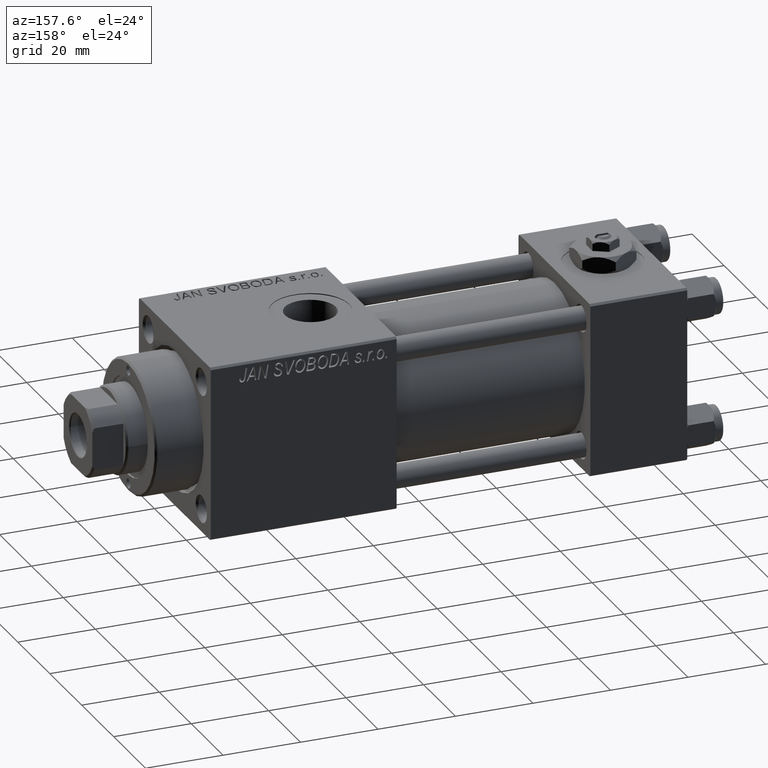
[diagram: clean part render]
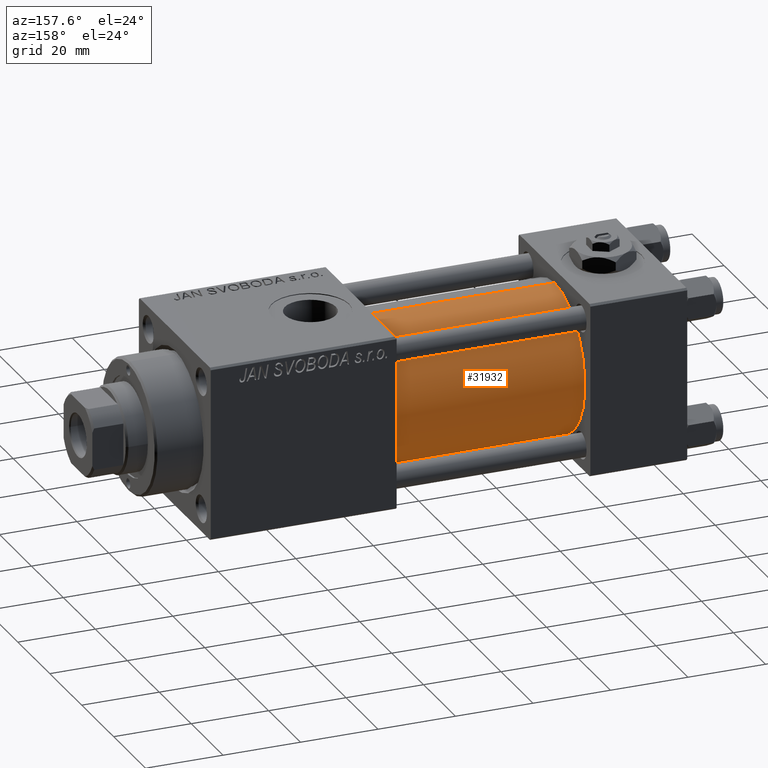
[diagram: same view with one face highlighted and labeled with its STEP entity id]
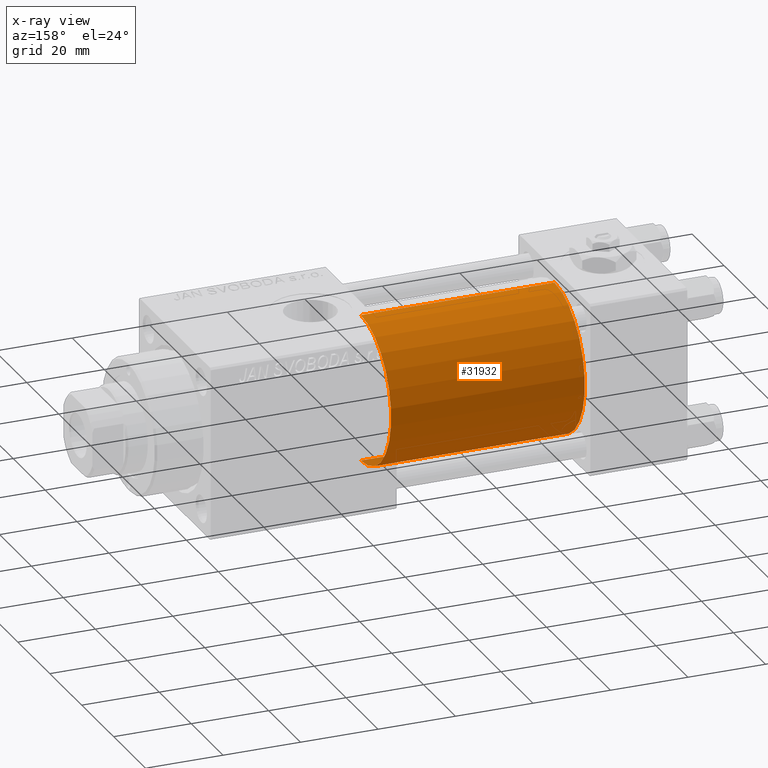
[diagram: x-ray of the same camera — body ghosted, the highlighted face saturated]
A machine part, auxiliary view. The second image highlights one B-rep face of the part: STEP entity #31932.
The next image is the same camera in x-ray: the body ghosted, the highlighted face saturated — about 0% of this face is hidden behind the body in this view.
In plain terms, the highlighted cylindrical surface (partial cylindrical patch) has radius 19 mm, axis along (-1, -0, -0).
Its self-contained STEP definition (entity closure, byte-faithful):
#1774 = ORIENTED_EDGE ( 'NONE', *, *, #43301, .T. ) ;
#3951 = DIRECTION ( 'NONE',  ( -1.000000000000000000, -0.000000000000000000, -0.000000000000000000 ) ) ;
#7934 = LINE ( 'NONE', #24064, #48114 ) ;
#8921 = CARTESIAN_POINT ( 'NONE',  ( 75.00000000000001421, -2.602085213965210642E-15, 0.000000000000000000 ) ) ;
#11958 = EDGE_CURVE ( 'NONE', #42568, #50211, #31040, .T. ) ;
#12145 = AXIS2_PLACEMENT_3D ( 'NONE', #15971, #47419, #51118 ) ;
#15971 = CARTESIAN_POINT ( 'NONE',  ( 25.00000000000000000, -2.602085213965210642E-15, 0.000000000000000000 ) ) ;
#16254 = ORIENTED_EDGE ( 'NONE', *, *, #25035, .F. ) ;
#16768 = VECTOR ( 'NONE', #26800, 1000.000000000000000 ) ;
#17113 = FACE_OUTER_BOUND ( 'NONE', #42223, .T. ) ;
#17901 = DIRECTION ( 'NONE',  ( -1.000000000000000000, -0.000000000000000000, -0.000000000000000000 ) ) ;
#21011 = DIRECTION ( 'NONE',  ( 1.000000000000000000, 0.000000000000000000, 0.000000000000000000 ) ) ;
#23731 = VERTEX_POINT ( 'NONE', #30001 ) ;
#24064 = CARTESIAN_POINT ( 'NONE',  ( 75.00000000000001421, -2.752562955852396712E-16, -19.00000000000000000 ) ) ;
#25035 = EDGE_CURVE ( 'NONE', #34732, #42568, #41567, .T. ) ;
#25683 = CIRCLE ( 'NONE', #12145, 19.00000000000000000 ) ;
#26241 = CARTESIAN_POINT ( 'NONE',  ( 25.00000000000000000, -2.602085213965210642E-15, 19.00000000000000000 ) ) ;
#26800 = DIRECTION ( 'NONE',  ( -1.000000000000000000, -0.000000000000000000, -0.000000000000000000 ) ) ;
#27559 = ORIENTED_EDGE ( 'NONE', *, *, #33058, .T. ) ;
#28585 = ORIENTED_EDGE ( 'NONE', *, *, #11958, .F. ) ;
#29300 = DIRECTION ( 'NONE',  ( 0.000000000000000000, 0.000000000000000000, 1.000000000000000000 ) ) ;
#30001 = CARTESIAN_POINT ( 'NONE',  ( 25.00000000000000000, -2.752562955852396712E-16, -19.00000000000000000 ) ) ;
#31040 = LINE ( 'NONE', #43206, #16768 ) ;
#31429 = AXIS2_PLACEMENT_3D ( 'NONE', #50378, #21011, #49606 ) ;
#31932 = ADVANCED_FACE ( 'NONE', ( #17113 ), #50199, .T. ) ;
#33058 = EDGE_CURVE ( 'NONE', #23731, #50211, #25683, .T. ) ;
#34732 = VERTEX_POINT ( 'NONE', #37737 ) ;
#35857 = CARTESIAN_POINT ( 'NONE',  ( 75.00000000000001421, -2.602085213965210642E-15, 19.00000000000000000 ) ) ;
#37737 = CARTESIAN_POINT ( 'NONE',  ( 75.00000000000001421, -2.752562955852396712E-16, -19.00000000000000000 ) ) ;
#41567 = CIRCLE ( 'NONE', #31429, 19.00000000000000000 ) ;
#42223 = EDGE_LOOP ( 'NONE', ( #16254, #1774, #27559, #28585 ) ) ;
#42568 = VERTEX_POINT ( 'NONE', #35857 ) ;
#43206 = CARTESIAN_POINT ( 'NONE',  ( 75.00000000000001421, -2.602085213965210642E-15, 19.00000000000000000 ) ) ;
#43301 = EDGE_CURVE ( 'NONE', #34732, #23731, #7934, .T. ) ;
#47419 = DIRECTION ( 'NONE',  ( 1.000000000000000000, -0.000000000000000000, 0.000000000000000000 ) ) ;
#48114 = VECTOR ( 'NONE', #3951, 1000.000000000000000 ) ;
#49606 = DIRECTION ( 'NONE',  ( 0.000000000000000000, 0.000000000000000000, -1.000000000000000000 ) ) ;
#50199 = CYLINDRICAL_SURFACE ( 'NONE', #51806, 19.00000000000000000 ) ;
#50211 = VERTEX_POINT ( 'NONE', #26241 ) ;
#50378 = CARTESIAN_POINT ( 'NONE',  ( 75.00000000000001421, -2.602085213965210642E-15, 0.000000000000000000 ) ) ;
#51118 = DIRECTION ( 'NONE',  ( 0.000000000000000000, 0.000000000000000000, 1.000000000000000000 ) ) ;
#51806 = AXIS2_PLACEMENT_3D ( 'NONE', #8921, #17901, #29300 ) ;